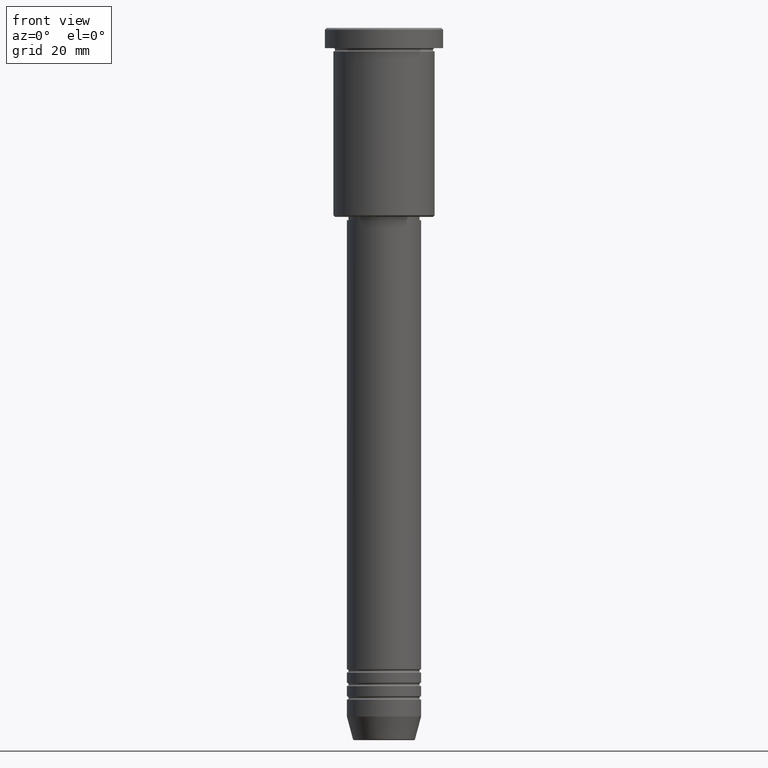
[diagram: clean part render]
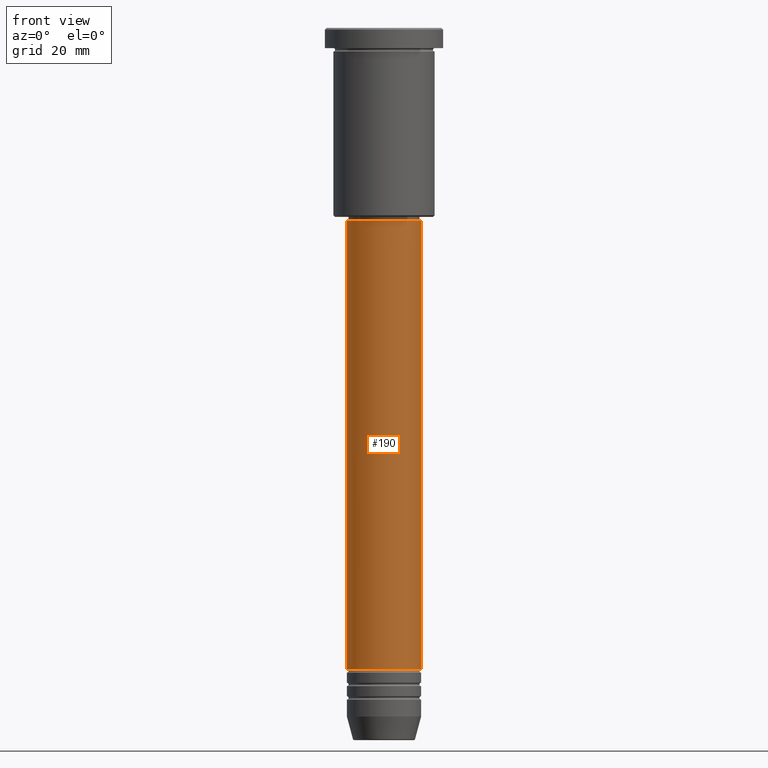
[diagram: same view with one face highlighted and labeled with its STEP entity id]
A machine part, front view. The second image highlights one B-rep face of the part: STEP entity #190.
In plain terms, the highlighted cylindrical surface (partial cylindrical patch) has radius 11 mm, axis along (-0, -0, 1).
Its self-contained STEP definition (entity closure, byte-faithful):
#17 = EDGE_CURVE ( 'NONE', #528, #458, #683, .T. ) ;
#27 = CARTESIAN_POINT ( 'NONE',  ( 0.000000000000000000, 0.000000000000000000, -189.9999999999999147 ) ) ;
#33 = DIRECTION ( 'NONE',  ( -0.000000000000000000, -0.000000000000000000, 1.000000000000000000 ) ) ;
#67 = DIRECTION ( 'NONE',  ( 1.000000000000000000, 0.000000000000000000, 0.000000000000000000 ) ) ;
#85 = ORIENTED_EDGE ( 'NONE', *, *, #262, .T. ) ;
#109 = AXIS2_PLACEMENT_3D ( 'NONE', #438, #1062, #67 ) ;
#148 = CARTESIAN_POINT ( 'NONE',  ( 11.00000000000000000, 0.000000000000000000, -57.00000000000004263 ) ) ;
#163 = CARTESIAN_POINT ( 'NONE',  ( 11.00000000000000000, 0.000000000000000000, -189.9999999999999147 ) ) ;
#190 = ADVANCED_FACE ( 'NONE', ( #333 ), #701, .T. ) ;
#211 = DIRECTION ( 'NONE',  ( 1.000000000000000000, 0.000000000000000000, 0.000000000000000000 ) ) ;
#262 = EDGE_CURVE ( 'NONE', #354, #528, #303, .T. ) ;
#279 = EDGE_LOOP ( 'NONE', ( #540, #85, #639, #347 ) ) ;
#303 = CIRCLE ( 'NONE', #791, 11.00000000000000000 ) ;
#304 = AXIS2_PLACEMENT_3D ( 'NONE', #502, #33, #211 ) ;
#326 = CARTESIAN_POINT ( 'NONE',  ( -11.00000000000000000, 1.347111479062088405E-15, -57.00000000000004263 ) ) ;
#333 = FACE_OUTER_BOUND ( 'NONE', #279, .T. ) ;
#347 = ORIENTED_EDGE ( 'NONE', *, *, #649, .F. ) ;
#354 = VERTEX_POINT ( 'NONE', #968 ) ;
#373 = VECTOR ( 'NONE', #593, 1000.000000000000000 ) ;
#406 = DIRECTION ( 'NONE',  ( 1.000000000000000000, 0.000000000000000000, 0.000000000000000000 ) ) ;
#438 = CARTESIAN_POINT ( 'NONE',  ( 0.000000000000000000, 0.000000000000000000, 0.000000000000000000 ) ) ;
#446 = LINE ( 'NONE', #711, #720 ) ;
#458 = VERTEX_POINT ( 'NONE', #148 ) ;
#486 = DIRECTION ( 'NONE',  ( -0.000000000000000000, -0.000000000000000000, 1.000000000000000000 ) ) ;
#502 = CARTESIAN_POINT ( 'NONE',  ( 0.000000000000000000, 0.000000000000000000, -57.00000000000004263 ) ) ;
#528 = VERTEX_POINT ( 'NONE', #163 ) ;
#540 = ORIENTED_EDGE ( 'NONE', *, *, #952, .F. ) ;
#593 = DIRECTION ( 'NONE',  ( -0.000000000000000000, -0.000000000000000000, 1.000000000000000000 ) ) ;
#639 = ORIENTED_EDGE ( 'NONE', *, *, #17, .T. ) ;
#649 = EDGE_CURVE ( 'NONE', #730, #458, #696, .T. ) ;
#683 = LINE ( 'NONE', #1121, #373 ) ;
#696 = CIRCLE ( 'NONE', #304, 11.00000000000000000 ) ;
#701 = CYLINDRICAL_SURFACE ( 'NONE', #109, 11.00000000000000000 ) ;
#711 = CARTESIAN_POINT ( 'NONE',  ( -11.00000000000000000, 1.347111479062088405E-15, 0.000000000000000000 ) ) ;
#720 = VECTOR ( 'NONE', #798, 1000.000000000000000 ) ;
#730 = VERTEX_POINT ( 'NONE', #326 ) ;
#791 = AXIS2_PLACEMENT_3D ( 'NONE', #27, #486, #406 ) ;
#798 = DIRECTION ( 'NONE',  ( -0.000000000000000000, -0.000000000000000000, 1.000000000000000000 ) ) ;
#952 = EDGE_CURVE ( 'NONE', #354, #730, #446, .T. ) ;
#968 = CARTESIAN_POINT ( 'NONE',  ( -11.00000000000000000, 1.347111479062088405E-15, -189.9999999999999147 ) ) ;
#1062 = DIRECTION ( 'NONE',  ( -0.000000000000000000, -0.000000000000000000, 1.000000000000000000 ) ) ;
#1121 = CARTESIAN_POINT ( 'NONE',  ( 11.00000000000000000, 0.000000000000000000, 0.000000000000000000 ) ) ;